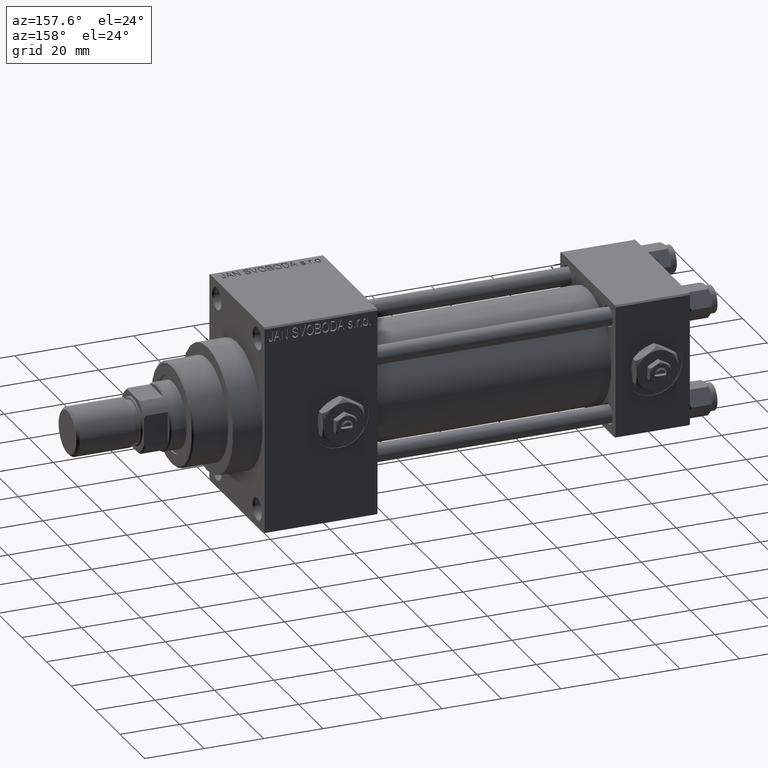
[diagram: clean part render]
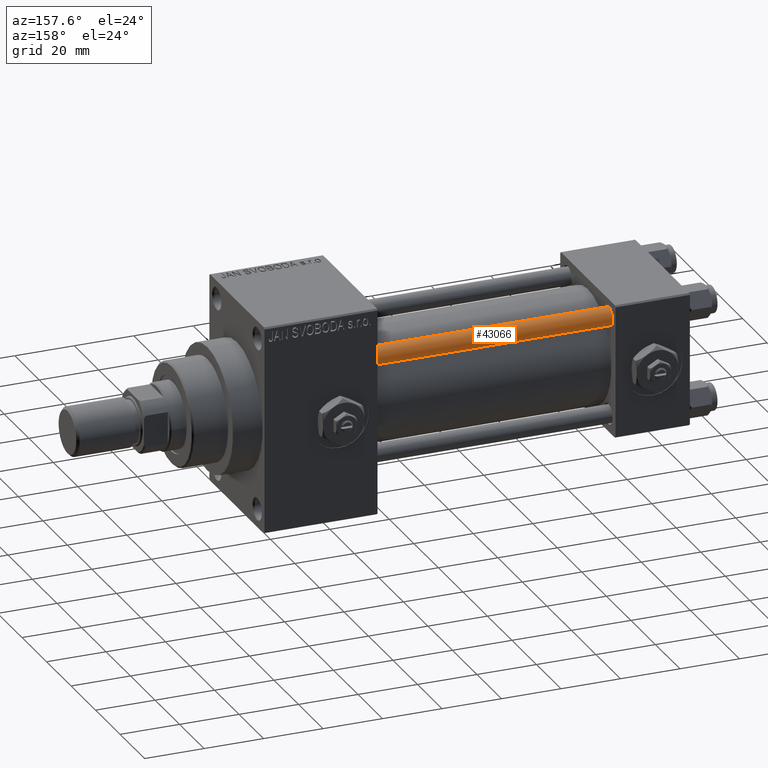
[diagram: same view with one face highlighted and labeled with its STEP entity id]
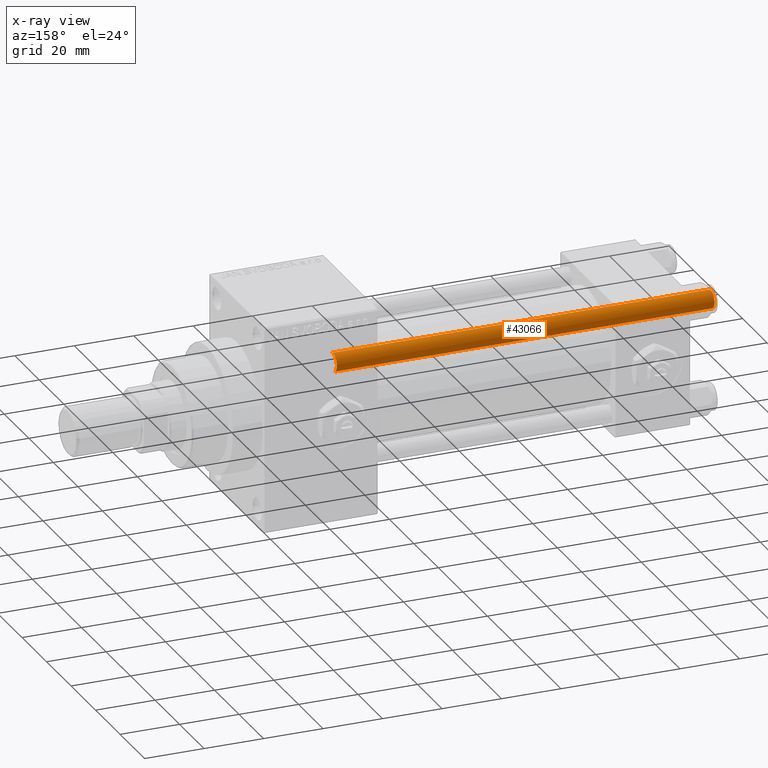
[diagram: x-ray of the same camera — body ghosted, the highlighted face saturated]
A machine part, auxiliary view. The second image highlights one B-rep face of the part: STEP entity #43066.
The next image is the same camera in x-ray: the body ghosted, the highlighted face saturated — about 0% of this face is hidden behind the body in this view.
In plain terms, the highlighted cylindrical surface (edge-blend (fillet) strip) has radius 3 mm, axis along (-1, -0, 0).
Its self-contained STEP definition (entity closure, byte-faithful):
#1236 = DIRECTION ( 'NONE',  ( -1.000000000000000000, 0.000000000000000000, 0.000000000000000000 ) ) ;
#2891 = EDGE_LOOP ( 'NONE', ( #32721, #7876, #12035, #40143 ) ) ;
#4718 = EDGE_CURVE ( 'NONE', #35577, #48415, #12611, .T. ) ;
#5006 = FACE_OUTER_BOUND ( 'NONE', #2891, .T. ) ;
#6049 = VECTOR ( 'NONE', #32802, 1000.000000000000000 ) ;
#7876 = ORIENTED_EDGE ( 'NONE', *, *, #38923, .T. ) ;
#12035 = ORIENTED_EDGE ( 'NONE', *, *, #4718, .T. ) ;
#12284 = CARTESIAN_POINT ( 'NONE',  ( 0.000000000000000000, 0.000000000000000000, 127.4999999999999716 ) ) ;
#12507 = DIRECTION ( 'NONE',  ( 1.000000000000000000, 0.000000000000000000, 0.000000000000000000 ) ) ;
#12611 = CIRCLE ( 'NONE', #20607, 3.000000000000000444 ) ;
#15765 = DIRECTION ( 'NONE',  ( -0.000000000000000000, -0.000000000000000000, -1.000000000000000000 ) ) ;
#16562 = CARTESIAN_POINT ( 'NONE',  ( 3.000000000000000444, 3.673940397442060361E-16, 127.4999999999999716 ) ) ;
#17360 = VECTOR ( 'NONE', #15765, 1000.000000000000000 ) ;
#17739 = CARTESIAN_POINT ( 'NONE',  ( -3.000000000000000444, 0.000000000000000000, 127.4999999999999716 ) ) ;
#20011 = DIRECTION ( 'NONE',  ( -0.000000000000000000, -0.000000000000000000, 1.000000000000000000 ) ) ;
#20607 = AXIS2_PLACEMENT_3D ( 'NONE', #44730, #20011, #12507 ) ;
#21558 = AXIS2_PLACEMENT_3D ( 'NONE', #12284, #27784, #31305 ) ;
#22335 = EDGE_CURVE ( 'NONE', #33600, #29184, #23950, .T. ) ;
#23265 = CARTESIAN_POINT ( 'NONE',  ( -3.000000000000000444, 0.000000000000000000, 128.0000000000000000 ) ) ;
#23769 = DIRECTION ( 'NONE',  ( -0.000000000000000000, -0.000000000000000000, -1.000000000000000000 ) ) ;
#23950 = CIRCLE ( 'NONE', #21558, 3.000000000000000444 ) ;
#26527 = LINE ( 'NONE', #23265, #17360 ) ;
#27784 = DIRECTION ( 'NONE',  ( 0.000000000000000000, 0.000000000000000000, -1.000000000000000000 ) ) ;
#29184 = VERTEX_POINT ( 'NONE', #16562 ) ;
#29594 = CARTESIAN_POINT ( 'NONE',  ( 3.000000000000000444, 3.673940397442060361E-16, 0.5000000000000281997 ) ) ;
#31294 = CYLINDRICAL_SURFACE ( 'NONE', #39765, 3.000000000000000444 ) ;
#31305 = DIRECTION ( 'NONE',  ( 1.000000000000000000, 0.000000000000000000, 0.000000000000000000 ) ) ;
#32721 = ORIENTED_EDGE ( 'NONE', *, *, #22335, .T. ) ;
#32802 = DIRECTION ( 'NONE',  ( -0.000000000000000000, -0.000000000000000000, -1.000000000000000000 ) ) ;
#33600 = VERTEX_POINT ( 'NONE', #17739 ) ;
#35577 = VERTEX_POINT ( 'NONE', #29594 ) ;
#36321 = CARTESIAN_POINT ( 'NONE',  ( 3.000000000000000444, 3.673940397442060361E-16, 128.0000000000000000 ) ) ;
#38923 = EDGE_CURVE ( 'NONE', #29184, #35577, #48097, .T. ) ;
#39765 = AXIS2_PLACEMENT_3D ( 'NONE', #46590, #23769, #1236 ) ;
#40143 = ORIENTED_EDGE ( 'NONE', *, *, #46588, .F. ) ;
#43066 = ADVANCED_FACE ( 'NONE', ( #5006 ), #31294, .T. ) ;
#43194 = CARTESIAN_POINT ( 'NONE',  ( -3.000000000000000444, 0.000000000000000000, 0.5000000000000281997 ) ) ;
#44730 = CARTESIAN_POINT ( 'NONE',  ( 0.000000000000000000, 0.000000000000000000, 0.5000000000000281997 ) ) ;
#46588 = EDGE_CURVE ( 'NONE', #33600, #48415, #26527, .T. ) ;
#46590 = CARTESIAN_POINT ( 'NONE',  ( 0.000000000000000000, 0.000000000000000000, 128.0000000000000000 ) ) ;
#48097 = LINE ( 'NONE', #36321, #6049 ) ;
#48415 = VERTEX_POINT ( 'NONE', #43194 ) ;